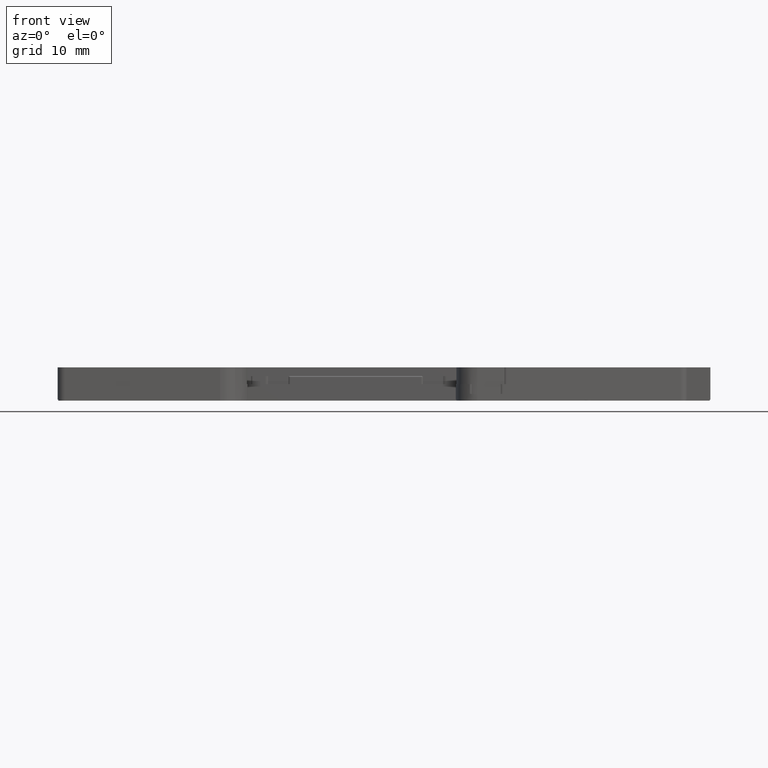
[diagram: clean part render]
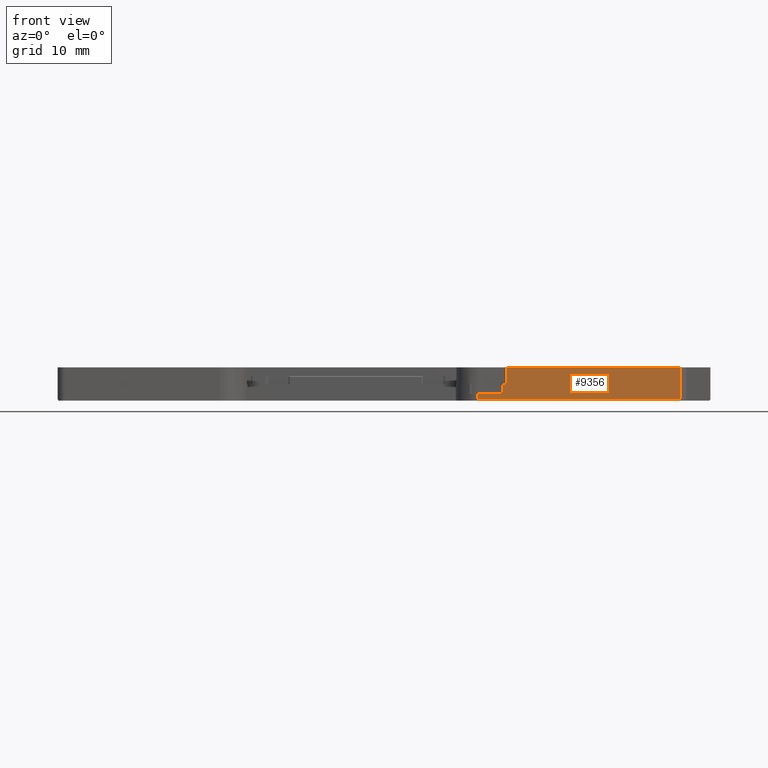
[diagram: same view with one face highlighted and labeled with its STEP entity id]
A machine part, front view. The second image highlights one B-rep face of the part: STEP entity #9356.
In plain terms, the highlighted planar face has unit normal (-0.1244, 0.9922, 0).
Its self-contained STEP definition (entity closure, byte-faithful):
#6 = VERTEX_POINT ( 'NONE', #18936 ) ;
#629 = LINE ( 'NONE', #5858, #14400 ) ;
#898 = CARTESIAN_POINT ( 'NONE',  ( -22.45181411618794300, -25.43442437701232000, 21.17509204364099800 ) ) ;
#1771 = EDGE_CURVE ( 'NONE', #24835, #29359, #24158, .T. ) ;
#1898 = DIRECTION ( 'NONE',  ( -0.9922290021511107600, -0.1244251071537047100, 0.0000000000000000000 ) ) ;
#1953 = DIRECTION ( 'NONE',  ( -0.9922290021511107600, -0.1244251071537047100, 0.0000000000000000000 ) ) ;
#2019 = CARTESIAN_POINT ( 'NONE',  ( -26.28095994748791900, -25.91459730510580800, 21.17509204364099400 ) ) ;
#3624 = ORIENTED_EDGE ( 'NONE', *, *, #16189, .F. ) ;
#4398 = CARTESIAN_POINT ( 'NONE',  ( 4.049796685800529000, -22.11113294761557000, 25.12509204364099700 ) ) ;
#4557 = VERTEX_POINT ( 'NONE', #26233 ) ;
#4761 = ORIENTED_EDGE ( 'NONE', *, *, #17377, .F. ) ;
#5771 = VECTOR ( 'NONE', #17117, 1000.000000000000000 ) ;
#5858 = CARTESIAN_POINT ( 'NONE',  ( -22.45181411618794300, -25.43442437701232000, 14.84968417960573800 ) ) ;
#6285 = VERTEX_POINT ( 'NONE', #20463 ) ;
#6594 = CARTESIAN_POINT ( 'NONE',  ( -26.28095994748791900, -25.91459730510580800, 20.32509204364099600 ) ) ;
#6606 = DIRECTION ( 'NONE',  ( 0.9922290021511107600, 0.1244251071537047100, -0.0000000000000000000 ) ) ;
#7191 = ORIENTED_EDGE ( 'NONE', *, *, #28836, .F. ) ;
#7927 = LINE ( 'NONE', #898, #5771 ) ;
#8607 = EDGE_CURVE ( 'NONE', #6285, #24835, #7927, .T. ) ;
#8794 = VECTOR ( 'NONE', #1953, 1000.000000000000100 ) ;
#9262 = VECTOR ( 'NONE', #25358, 1000.000000000000000 ) ;
#9356 = ADVANCED_FACE ( 'NONE', ( #28861 ), #29918, .F. ) ;
#9432 = AXIS2_PLACEMENT_3D ( 'NONE', #27620, #20772, #1898 ) ;
#9709 = VECTOR ( 'NONE', #6606, 1000.000000000000100 ) ;
#10258 = DIRECTION ( 'NONE',  ( -0.0000000000000000000, -0.0000000000000000000, 1.000000000000000000 ) ) ;
#10597 = DIRECTION ( 'NONE',  ( -0.0000000000000000000, -0.0000000000000000000, 1.000000000000000000 ) ) ;
#11122 = CARTESIAN_POINT ( 'NONE',  ( 4.049796685800529000, -22.11113294761557000, 20.32509204364099600 ) ) ;
#11169 = ORIENTED_EDGE ( 'NONE', *, *, #28001, .F. ) ;
#11651 = EDGE_CURVE ( 'NONE', #4557, #29359, #15364, .T. ) ;
#13355 = LINE ( 'NONE', #20257, #9709 ) ;
#14139 = CARTESIAN_POINT ( 'NONE',  ( -21.91344410976706000, -25.36691064020701700, 22.62509204364099700 ) ) ;
#14400 = VECTOR ( 'NONE', #10597, 1000.000000000000000 ) ;
#14496 = LINE ( 'NONE', #4398, #20721 ) ;
#15364 = LINE ( 'NONE', #11122, #8794 ) ;
#15755 = DIRECTION ( 'NONE',  ( 0.9922290021511107600, 0.1244251071537047100, 0.0000000000000000000 ) ) ;
#15785 = CARTESIAN_POINT ( 'NONE',  ( -22.45181411618794300, -25.43442437701232000, 22.62509204364099700 ) ) ;
#16145 = LINE ( 'NONE', #22197, #21644 ) ;
#16189 = EDGE_CURVE ( 'NONE', #29253, #4557, #23303, .T. ) ;
#17117 = DIRECTION ( 'NONE',  ( -0.9922290142438258100, -0.1244250107202157100, 0.0000000000000000000 ) ) ;
#17377 = EDGE_CURVE ( 'NONE', #28570, #29076, #13355, .T. ) ;
#18936 = CARTESIAN_POINT ( 'NONE',  ( -21.91344410976706000, -25.36691064020701700, 25.12509204364099700 ) ) ;
#20257 = CARTESIAN_POINT ( 'NONE',  ( 4.049796685800529000, -22.11113294761557000, 22.62509204364099700 ) ) ;
#20463 = CARTESIAN_POINT ( 'NONE',  ( -22.45181411618794300, -25.43442437701232000, 21.17509204364099800 ) ) ;
#20721 = VECTOR ( 'NONE', #15755, 1000.000000000000100 ) ;
#20772 = DIRECTION ( 'NONE',  ( -0.1244251071537047200, 0.9922290021511108700, 0.0000000000000000000 ) ) ;
#20829 = DIRECTION ( 'NONE',  ( -0.0000000000000000000, -0.0000000000000000000, -1.000000000000000000 ) ) ;
#21644 = VECTOR ( 'NONE', #10258, 1000.000000000000000 ) ;
#22197 = CARTESIAN_POINT ( 'NONE',  ( -21.91344410976706000, -25.36691064020701700, 22.62509204364099700 ) ) ;
#22425 = EDGE_LOOP ( 'NONE', ( #11169, #25470, #4761, #7191, #24544, #28439, #28059, #3624 ) ) ;
#22444 = EDGE_CURVE ( 'NONE', #29076, #6, #16145, .T. ) ;
#23303 = LINE ( 'NONE', #27293, #25104 ) ;
#24158 = LINE ( 'NONE', #27854, #9262 ) ;
#24544 = ORIENTED_EDGE ( 'NONE', *, *, #8607, .T. ) ;
#24835 = VERTEX_POINT ( 'NONE', #2019 ) ;
#25104 = VECTOR ( 'NONE', #20829, 1000.000000000000000 ) ;
#25358 = DIRECTION ( 'NONE',  ( -0.0000000000000000000, -0.0000000000000000000, -1.000000000000000000 ) ) ;
#25470 = ORIENTED_EDGE ( 'NONE', *, *, #22444, .F. ) ;
#26233 = CARTESIAN_POINT ( 'NONE',  ( 4.049796685800529000, -22.11113294761557000, 20.32509204364099600 ) ) ;
#27293 = CARTESIAN_POINT ( 'NONE',  ( 4.049796685800529000, -22.11113294761557000, 25.17509204364099800 ) ) ;
#27620 = CARTESIAN_POINT ( 'NONE',  ( 4.049796685800529000, -22.11113294761557000, 25.17509204364099800 ) ) ;
#27854 = CARTESIAN_POINT ( 'NONE',  ( -26.28095994748791900, -25.91459730510580800, 25.17509204364099800 ) ) ;
#28001 = EDGE_CURVE ( 'NONE', #6, #29253, #14496, .T. ) ;
#28059 = ORIENTED_EDGE ( 'NONE', *, *, #11651, .F. ) ;
#28439 = ORIENTED_EDGE ( 'NONE', *, *, #1771, .T. ) ;
#28570 = VERTEX_POINT ( 'NONE', #15785 ) ;
#28836 = EDGE_CURVE ( 'NONE', #6285, #28570, #629, .T. ) ;
#28861 = FACE_OUTER_BOUND ( 'NONE', #22425, .T. ) ;
#29076 = VERTEX_POINT ( 'NONE', #14139 ) ;
#29108 = CARTESIAN_POINT ( 'NONE',  ( 4.049796685800529000, -22.11113294761557000, 25.12509204364099700 ) ) ;
#29253 = VERTEX_POINT ( 'NONE', #29108 ) ;
#29359 = VERTEX_POINT ( 'NONE', #6594 ) ;
#29918 = PLANE ( 'NONE',  #9432 ) ;